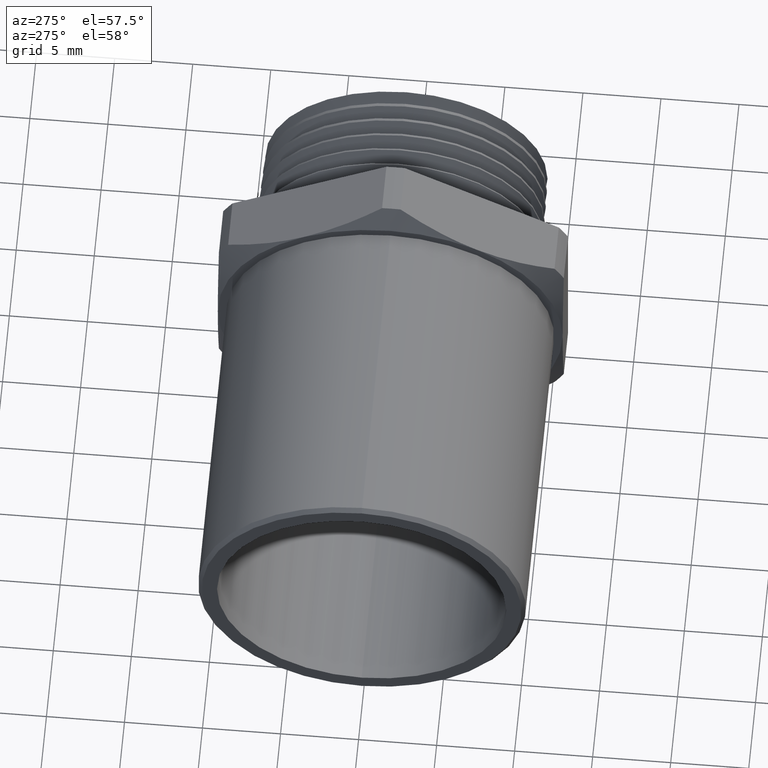
[diagram: clean part render]
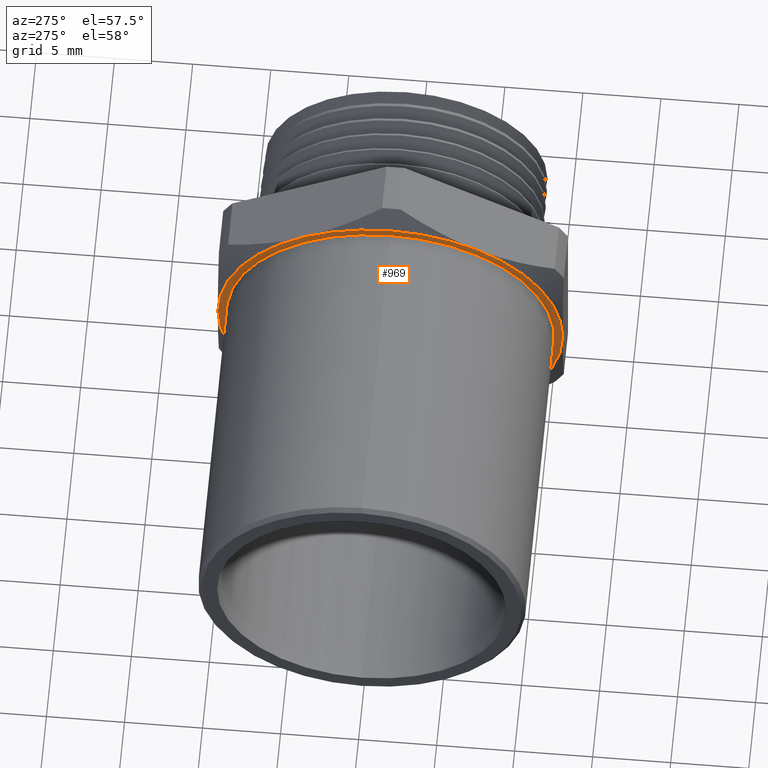
[diagram: same view with one face highlighted and labeled with its STEP entity id]
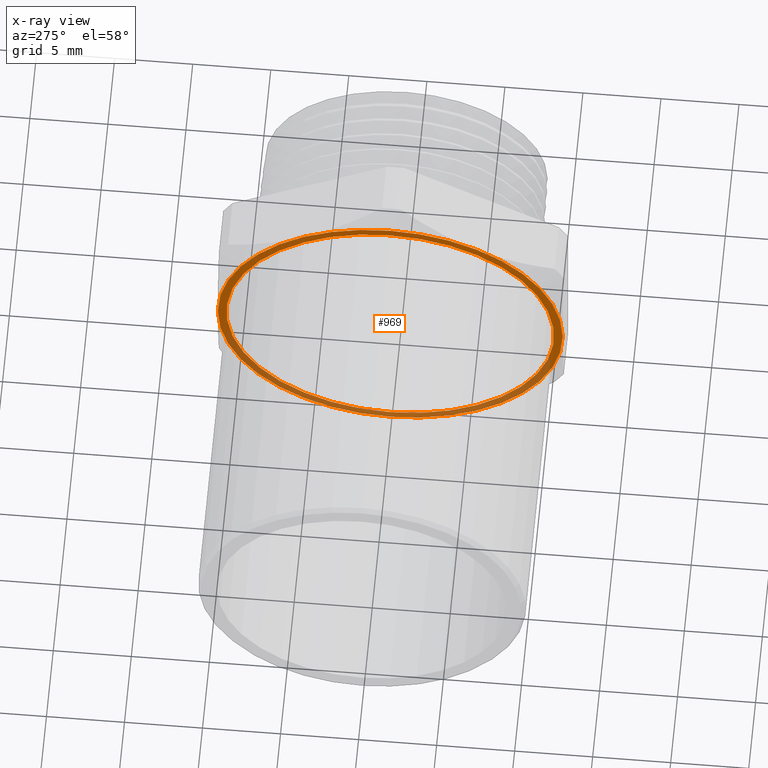
[diagram: x-ray of the same camera — body ghosted, the highlighted face saturated]
A machine part, auxiliary view. The second image highlights one B-rep face of the part: STEP entity #969.
The next image is the same camera in x-ray: the body ghosted, the highlighted face saturated — about 42% of this face is hidden behind the body in this view.
In plain terms, the highlighted planar face has unit normal (1, 0, 0).
Its self-contained STEP definition (entity closure, byte-faithful):
#501 = CARTESIAN_POINT ( 'NONE',  ( -0.4649999999999997500, 5.060852897476437900E-017, -0.4132500000000001200 ) ) ;
#506 = CARTESIAN_POINT ( 'NONE',  ( -0.4649999999999997500, 0.0000000000000000000, 0.4132500000000001700 ) ) ;
#507 = DIRECTION ( 'NONE',  ( 0.0000000000000000000, 0.0000000000000000000, 1.000000000000000000 ) ) ;
#508 = DIRECTION ( 'NONE',  ( -1.000000000000000000, 0.0000000000000000000, 0.0000000000000000000 ) ) ;
#509 = CARTESIAN_POINT ( 'NONE',  ( -0.4649999999999997500, 0.0000000000000000000, 0.0000000000000000000 ) ) ;
#510 = AXIS2_PLACEMENT_3D ( 'NONE', #509, #508, #507 ) ;
#511 = CIRCLE ( 'NONE', #510, 0.4132500000000001700 ) ;
#578 = DIRECTION ( 'NONE',  ( 0.0000000000000000000, 0.0000000000000000000, 1.000000000000000000 ) ) ;
#579 = DIRECTION ( 'NONE',  ( -1.000000000000000000, 0.0000000000000000000, 0.0000000000000000000 ) ) ;
#580 = CARTESIAN_POINT ( 'NONE',  ( -0.4649999999999998000, 0.0000000000000000000, 0.0000000000000000000 ) ) ;
#581 = AXIS2_PLACEMENT_3D ( 'NONE', #580, #579, #578 ) ;
#582 = CIRCLE ( 'NONE', #581, 0.4349999999999999400 ) ;
#681 = DIRECTION ( 'NONE',  ( 0.0000000000000000000, 0.0000000000000000000, 1.000000000000000000 ) ) ;
#682 = DIRECTION ( 'NONE',  ( -1.000000000000000000, 0.0000000000000000000, 0.0000000000000000000 ) ) ;
#683 = CARTESIAN_POINT ( 'NONE',  ( -0.4649999999999997500, 0.0000000000000000000, 0.0000000000000000000 ) ) ;
#684 = AXIS2_PLACEMENT_3D ( 'NONE', #683, #682, #681 ) ;
#685 = CIRCLE ( 'NONE', #684, 0.4132500000000001700 ) ;
#686 = DIRECTION ( 'NONE',  ( 0.0000000000000000000, 0.0000000000000000000, -1.000000000000000000 ) ) ;
#687 = DIRECTION ( 'NONE',  ( 1.000000000000000000, 0.0000000000000000000, 0.0000000000000000000 ) ) ;
#688 = CARTESIAN_POINT ( 'NONE',  ( -0.4649999999999998000, 0.4893750000000000000, 0.0000000000000000000 ) ) ;
#689 = AXIS2_PLACEMENT_3D ( 'NONE', #688, #687, #686 ) ;
#690 = PLANE ( 'NONE',  #689 ) ;
#691 = FACE_OUTER_BOUND ( 'NONE', #972, .T. ) ;
#692 = FACE_BOUND ( 'NONE', #971, .T. ) ;
#879 = EDGE_CURVE ( 'NONE', #880, #883, #511, .T. ) ;
#880 = VERTEX_POINT ( 'NONE', #506 ) ;
#883 = VERTEX_POINT ( 'NONE', #501 ) ;
#914 = ORIENTED_EDGE ( 'NONE', *, *, #923, .T. ) ;
#923 = EDGE_CURVE ( 'NONE', #1244, #1100, #582, .T. ) ;
#963 = ORIENTED_EDGE ( 'NONE', *, *, #1102, .T. ) ;
#968 = ORIENTED_EDGE ( 'NONE', *, *, #970, .F. ) ;
#969 = ADVANCED_FACE ( 'NONE', ( #692, #691 ), #690, .F. ) ;
#970 = EDGE_CURVE ( 'NONE', #883, #880, #685, .T. ) ;
#971 = EDGE_LOOP ( 'NONE', ( #973, #968 ) ) ;
#972 = EDGE_LOOP ( 'NONE', ( #963, #1104, #1099, #1098, #1092, #1096, #914 ) ) ;
#973 = ORIENTED_EDGE ( 'NONE', *, *, #879, .F. ) ;
#1090 = EDGE_CURVE ( 'NONE', #1097, #1091, #1539, .T. ) ;
#1091 = VERTEX_POINT ( 'NONE', #1604 ) ;
#1092 = ORIENTED_EDGE ( 'NONE', *, *, #1094, .T. ) ;
#1093 = EDGE_CURVE ( 'NONE', #1091, #1095, #1599, .T. ) ;
#1094 = EDGE_CURVE ( 'NONE', #1095, #1272, #1593, .T. ) ;
#1095 = VERTEX_POINT ( 'NONE', #1594 ) ;
#1096 = ORIENTED_EDGE ( 'NONE', *, *, #1279, .T. ) ;
#1097 = VERTEX_POINT ( 'NONE', #1588 ) ;
#1098 = ORIENTED_EDGE ( 'NONE', *, *, #1093, .T. ) ;
#1099 = ORIENTED_EDGE ( 'NONE', *, *, #1090, .T. ) ;
#1100 = VERTEX_POINT ( 'NONE', #1587 ) ;
#1101 = VERTEX_POINT ( 'NONE', #1586 ) ;
#1102 = EDGE_CURVE ( 'NONE', #1100, #1101, #1585, .T. ) ;
#1103 = EDGE_CURVE ( 'NONE', #1101, #1097, #1580, .T. ) ;
#1104 = ORIENTED_EDGE ( 'NONE', *, *, #1103, .T. ) ;
#1244 = VERTEX_POINT ( 'NONE', #1800 ) ;
#1272 = VERTEX_POINT ( 'NONE', #1829 ) ;
#1279 = EDGE_CURVE ( 'NONE', #1272, #1244, #1874, .T. ) ;
#1539 = CIRCLE ( 'NONE', #1603, 0.4349999999999999400 ) ;
#1576 = DIRECTION ( 'NONE',  ( 0.0000000000000000000, 0.0000000000000000000, 1.000000000000000000 ) ) ;
#1577 = DIRECTION ( 'NONE',  ( -1.000000000000000000, 0.0000000000000000000, 0.0000000000000000000 ) ) ;
#1578 = CARTESIAN_POINT ( 'NONE',  ( -0.4649999999999998000, 0.0000000000000000000, 0.0000000000000000000 ) ) ;
#1579 = AXIS2_PLACEMENT_3D ( 'NONE', #1578, #1577, #1576 ) ;
#1580 = CIRCLE ( 'NONE', #1579, 0.4349999999999999400 ) ;
#1581 = DIRECTION ( 'NONE',  ( 0.0000000000000000000, 0.0000000000000000000, 1.000000000000000000 ) ) ;
#1582 = DIRECTION ( 'NONE',  ( -1.000000000000000000, 0.0000000000000000000, 0.0000000000000000000 ) ) ;
#1583 = CARTESIAN_POINT ( 'NONE',  ( -0.4649999999999998000, 0.0000000000000000000, 0.0000000000000000000 ) ) ;
#1584 = AXIS2_PLACEMENT_3D ( 'NONE', #1583, #1582, #1581 ) ;
#1585 = CIRCLE ( 'NONE', #1584, 0.4349999999999999400 ) ;
#1586 = CARTESIAN_POINT ( 'NONE',  ( -0.4649999999999998000, 0.2175000000000002500, -0.3767210506462309600 ) ) ;
#1587 = CARTESIAN_POINT ( 'NONE',  ( -0.4649999999999998000, 0.4350000000000003900, 0.0000000000000000000 ) ) ;
#1588 = CARTESIAN_POINT ( 'NONE',  ( -0.4649999999999998000, -0.2175000000000000800, -0.3767210506462307900 ) ) ;
#1589 = DIRECTION ( 'NONE',  ( 0.0000000000000000000, 0.0000000000000000000, 1.000000000000000000 ) ) ;
#1590 = DIRECTION ( 'NONE',  ( -1.000000000000000000, 0.0000000000000000000, 0.0000000000000000000 ) ) ;
#1591 = CARTESIAN_POINT ( 'NONE',  ( -0.4649999999999998000, 0.0000000000000000000, 0.0000000000000000000 ) ) ;
#1592 = AXIS2_PLACEMENT_3D ( 'NONE', #1591, #1590, #1589 ) ;
#1593 = CIRCLE ( 'NONE', #1592, 0.4349999999999999400 ) ;
#1594 = CARTESIAN_POINT ( 'NONE',  ( -0.4649999999999998000, -0.2174999999999999400, 0.3767210506462306800 ) ) ;
#1595 = DIRECTION ( 'NONE',  ( 0.0000000000000000000, 0.0000000000000000000, 1.000000000000000000 ) ) ;
#1596 = DIRECTION ( 'NONE',  ( -1.000000000000000000, 0.0000000000000000000, 0.0000000000000000000 ) ) ;
#1597 = CARTESIAN_POINT ( 'NONE',  ( -0.4649999999999998000, 0.0000000000000000000, 0.0000000000000000000 ) ) ;
#1598 = AXIS2_PLACEMENT_3D ( 'NONE', #1597, #1596, #1595 ) ;
#1599 = CIRCLE ( 'NONE', #1598, 0.4349999999999999400 ) ;
#1600 = DIRECTION ( 'NONE',  ( 0.0000000000000000000, 0.0000000000000000000, 1.000000000000000000 ) ) ;
#1601 = DIRECTION ( 'NONE',  ( -1.000000000000000000, 0.0000000000000000000, 0.0000000000000000000 ) ) ;
#1602 = CARTESIAN_POINT ( 'NONE',  ( -0.4649999999999998000, 0.0000000000000000000, 0.0000000000000000000 ) ) ;
#1603 = AXIS2_PLACEMENT_3D ( 'NONE', #1602, #1601, #1600 ) ;
#1604 = CARTESIAN_POINT ( 'NONE',  ( -0.4649999999999998000, -0.4349999999999998900, 0.0000000000000000000 ) ) ;
#1800 = CARTESIAN_POINT ( 'NONE',  ( -0.4649999999999998000, 0.2174999999999998900, 0.3767210506462309600 ) ) ;
#1829 = CARTESIAN_POINT ( 'NONE',  ( -0.4649999999999998000, 0.0000000000000000000, 0.4349999999999999400 ) ) ;
#1871 = DIRECTION ( 'NONE',  ( 0.0000000000000000000, 0.0000000000000000000, 1.000000000000000000 ) ) ;
#1872 = DIRECTION ( 'NONE',  ( -1.000000000000000000, 0.0000000000000000000, 0.0000000000000000000 ) ) ;
#1873 = AXIS2_PLACEMENT_3D ( 'NONE', #1878, #1872, #1871 ) ;
#1874 = CIRCLE ( 'NONE', #1873, 0.4349999999999999400 ) ;
#1878 = CARTESIAN_POINT ( 'NONE',  ( -0.4649999999999998000, 0.0000000000000000000, 0.0000000000000000000 ) ) ;